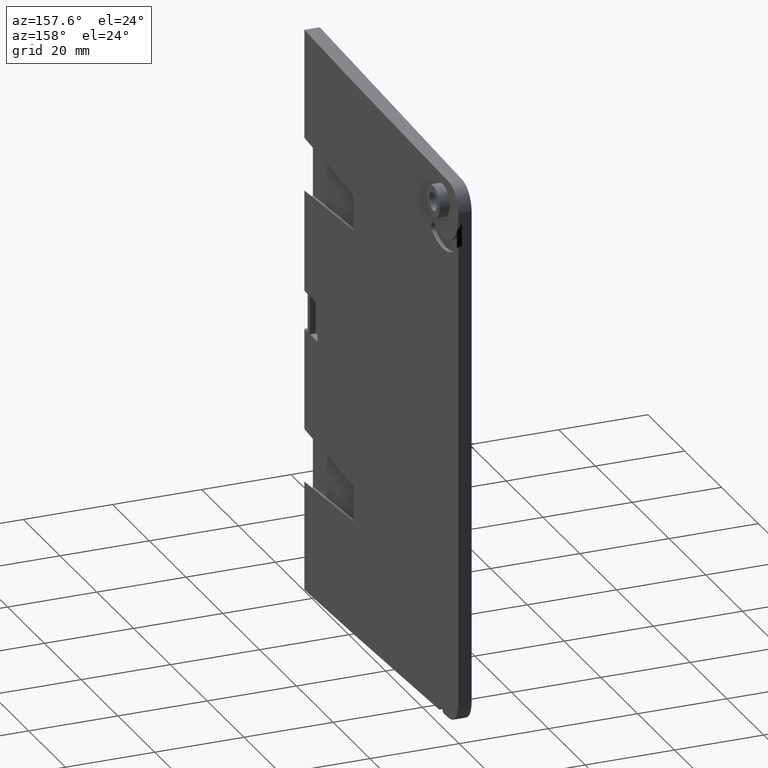
[diagram: clean part render]
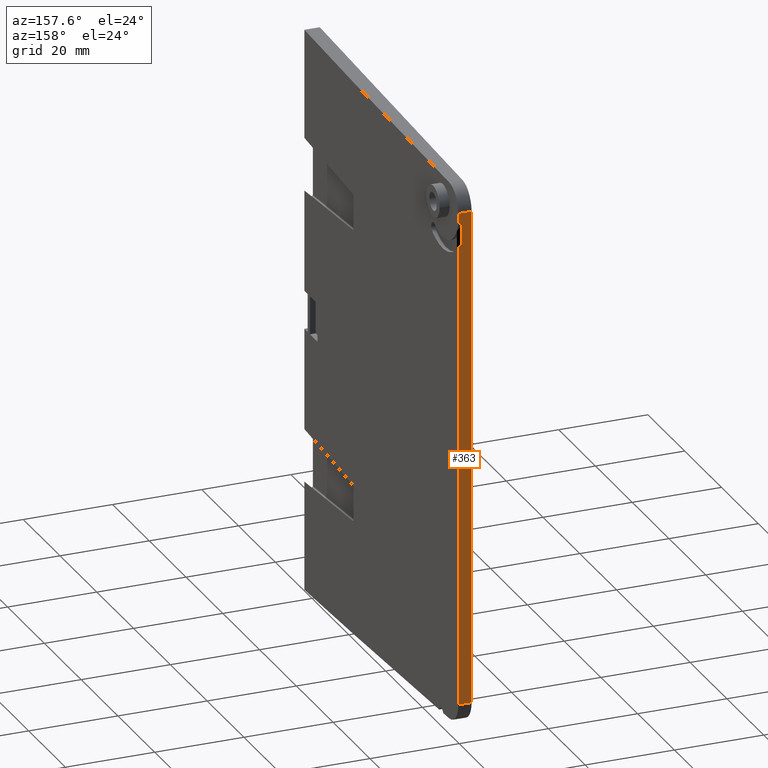
[diagram: same view with one face highlighted and labeled with its STEP entity id]
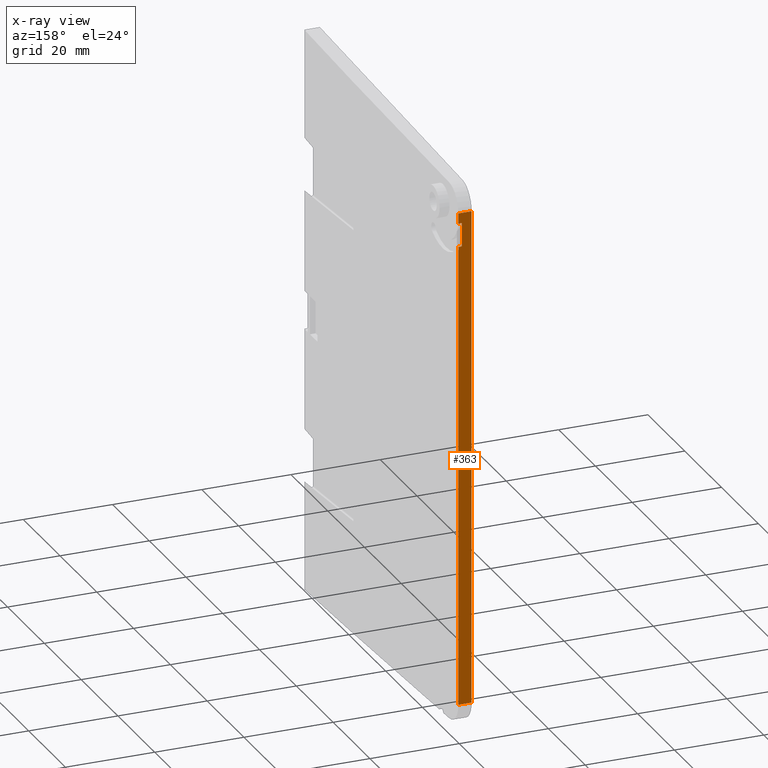
[diagram: x-ray of the same camera — body ghosted, the highlighted face saturated]
A machine part, auxiliary view. The second image highlights one B-rep face of the part: STEP entity #363.
The next image is the same camera in x-ray: the body ghosted, the highlighted face saturated — about 0% of this face is hidden behind the body in this view.
In plain terms, the highlighted planar face has unit normal (0, -1, 0).
Its self-contained STEP definition (entity closure, byte-faithful):
#22 = VECTOR ( 'NONE', #572, 39.37007874015748100 ) ;
#29 = EDGE_CURVE ( 'NONE', #1047, #997, #347, .T. ) ;
#41 = FACE_OUTER_BOUND ( 'NONE', #874, .T. ) ;
#50 = EDGE_CURVE ( 'NONE', #440, #1047, #340, .T. ) ;
#70 = CARTESIAN_POINT ( 'NONE',  ( 0.04880089086033145800, 3.250000000000000000, -2.193369744190404500 ) ) ;
#72 = DIRECTION ( 'NONE',  ( -1.000000000000000000, -0.0000000000000000000, -0.0000000000000000000 ) ) ;
#90 = ORIENTED_EDGE ( 'NONE', *, *, #820, .T. ) ;
#104 = LINE ( 'NONE', #912, #1232 ) ;
#140 = CARTESIAN_POINT ( 'NONE',  ( 0.04880089086033145800, 3.250000000000000000, -2.193369744190404500 ) ) ;
#165 = DIRECTION ( 'NONE',  ( 0.0000000000000000000, 0.0000000000000000000, -1.000000000000000000 ) ) ;
#170 = CARTESIAN_POINT ( 'NONE',  ( 0.01800000000000038400, 3.250000000000000400, 1.894863354103982800 ) ) ;
#214 = CARTESIAN_POINT ( 'NONE',  ( 0.04880089086033145800, 3.250000000000000400, 1.894863354103982800 ) ) ;
#222 = ORIENTED_EDGE ( 'NONE', *, *, #50, .T. ) ;
#232 = VECTOR ( 'NONE', #72, 39.37007874015748100 ) ;
#235 = LINE ( 'NONE', #765, #1140 ) ;
#325 = ORIENTED_EDGE ( 'NONE', *, *, #29, .T. ) ;
#327 = VECTOR ( 'NONE', #165, 39.37007874015748100 ) ;
#340 = LINE ( 'NONE', #170, #1017 ) ;
#347 = LINE ( 'NONE', #461, #327 ) ;
#363 = ADVANCED_FACE ( 'NONE', ( #41 ), #840, .F. ) ;
#366 = EDGE_CURVE ( 'NONE', #547, #1249, #104, .T. ) ;
#420 = EDGE_CURVE ( 'NONE', #440, #1307, #235, .T. ) ;
#425 = CARTESIAN_POINT ( 'NONE',  ( -0.06799999999996914100, 3.250000000000000400, -2.193369744190404500 ) ) ;
#430 = DIRECTION ( 'NONE',  ( 1.000000000000000000, -1.195183497228115500E-016, 0.0000000000000000000 ) ) ;
#434 = ORIENTED_EDGE ( 'NONE', *, *, #713, .T. ) ;
#440 = VERTEX_POINT ( 'NONE', #649 ) ;
#454 = CARTESIAN_POINT ( 'NONE',  ( 0.04880089086033145800, 3.250000000000000000, 2.193369744190405000 ) ) ;
#461 = CARTESIAN_POINT ( 'NONE',  ( 0.04880089086033145800, 3.250000000000000000, 2.500000000000000000 ) ) ;
#545 = CARTESIAN_POINT ( 'NONE',  ( 0.01800000000000038400, 3.250000000000000000, 2.102759615953644400 ) ) ;
#547 = VERTEX_POINT ( 'NONE', #751 ) ;
#572 = DIRECTION ( 'NONE',  ( 0.0000000000000000000, 0.0000000000000000000, -1.000000000000000000 ) ) ;
#586 = ORIENTED_EDGE ( 'NONE', *, *, #791, .F. ) ;
#590 = VECTOR ( 'NONE', #913, 39.37007874015748100 ) ;
#626 = CARTESIAN_POINT ( 'NONE',  ( 0.04880089086033145800, 3.250000000000000000, 2.102759615953644400 ) ) ;
#644 = ORIENTED_EDGE ( 'NONE', *, *, #685, .F. ) ;
#649 = CARTESIAN_POINT ( 'NONE',  ( 0.01800000000000038700, 3.250000000000000000, 1.894863354103982800 ) ) ;
#685 = EDGE_CURVE ( 'NONE', #1307, #1360, #817, .T. ) ;
#713 = EDGE_CURVE ( 'NONE', #1249, #1360, #831, .T. ) ;
#717 = CARTESIAN_POINT ( 'NONE',  ( 0.04880089086033145800, 3.250000000000000000, 2.500000000000000000 ) ) ;
#751 = CARTESIAN_POINT ( 'NONE',  ( -0.06799999999996914100, 3.250000000000000400, 2.193369744190405000 ) ) ;
#765 = CARTESIAN_POINT ( 'NONE',  ( 0.01800000000000038400, 3.250000000000000000, 2.102759615953644400 ) ) ;
#791 = EDGE_CURVE ( 'NONE', #547, #928, #1333, .T. ) ;
#802 = VECTOR ( 'NONE', #873, 39.37007874015748100 ) ;
#817 = LINE ( 'NONE', #978, #802 ) ;
#820 = EDGE_CURVE ( 'NONE', #997, #928, #1054, .T. ) ;
#830 = DIRECTION ( 'NONE',  ( 0.0000000000000000000, -1.000000000000000000, 0.0000000000000000000 ) ) ;
#831 = LINE ( 'NONE', #717, #22 ) ;
#840 = PLANE ( 'NONE',  #1210 ) ;
#873 = DIRECTION ( 'NONE',  ( 1.000000000000000000, -1.195183497228115500E-016, 0.0000000000000000000 ) ) ;
#874 = EDGE_LOOP ( 'NONE', ( #941, #222, #325, #90, #586, #1315, #434, #644 ) ) ;
#882 = DIRECTION ( 'NONE',  ( 0.0000000000000000000, 0.0000000000000000000, -1.000000000000000000 ) ) ;
#896 = DIRECTION ( 'NONE',  ( 1.000000000000000000, -0.0000000000000000000, -0.0000000000000000000 ) ) ;
#898 = CARTESIAN_POINT ( 'NONE',  ( -0.06799999999996914100, 3.250000000000000400, 2.500000000000000000 ) ) ;
#912 = CARTESIAN_POINT ( 'NONE',  ( 0.04880089086033141700, 3.250000000000000000, 2.193369744190405000 ) ) ;
#913 = DIRECTION ( 'NONE',  ( 0.0000000000000000000, 0.0000000000000000000, -1.000000000000000000 ) ) ;
#928 = VERTEX_POINT ( 'NONE', #425 ) ;
#941 = ORIENTED_EDGE ( 'NONE', *, *, #420, .F. ) ;
#974 = CARTESIAN_POINT ( 'NONE',  ( 0.04880089086033145800, 3.250000000000000000, 2.500000000000000000 ) ) ;
#978 = CARTESIAN_POINT ( 'NONE',  ( 0.01800000000000038400, 3.250000000000000000, 2.102759615953644400 ) ) ;
#997 = VERTEX_POINT ( 'NONE', #140 ) ;
#1017 = VECTOR ( 'NONE', #430, 39.37007874015748100 ) ;
#1047 = VERTEX_POINT ( 'NONE', #214 ) ;
#1054 = LINE ( 'NONE', #70, #232 ) ;
#1140 = VECTOR ( 'NONE', #1178, 39.37007874015748100 ) ;
#1178 = DIRECTION ( 'NONE',  ( 0.0000000000000000000, -2.628087652330924700E-015, 1.000000000000000000 ) ) ;
#1210 = AXIS2_PLACEMENT_3D ( 'NONE', #974, #830, #882 ) ;
#1232 = VECTOR ( 'NONE', #896, 39.37007874015748100 ) ;
#1249 = VERTEX_POINT ( 'NONE', #454 ) ;
#1307 = VERTEX_POINT ( 'NONE', #545 ) ;
#1315 = ORIENTED_EDGE ( 'NONE', *, *, #366, .T. ) ;
#1333 = LINE ( 'NONE', #898, #590 ) ;
#1360 = VERTEX_POINT ( 'NONE', #626 ) ;